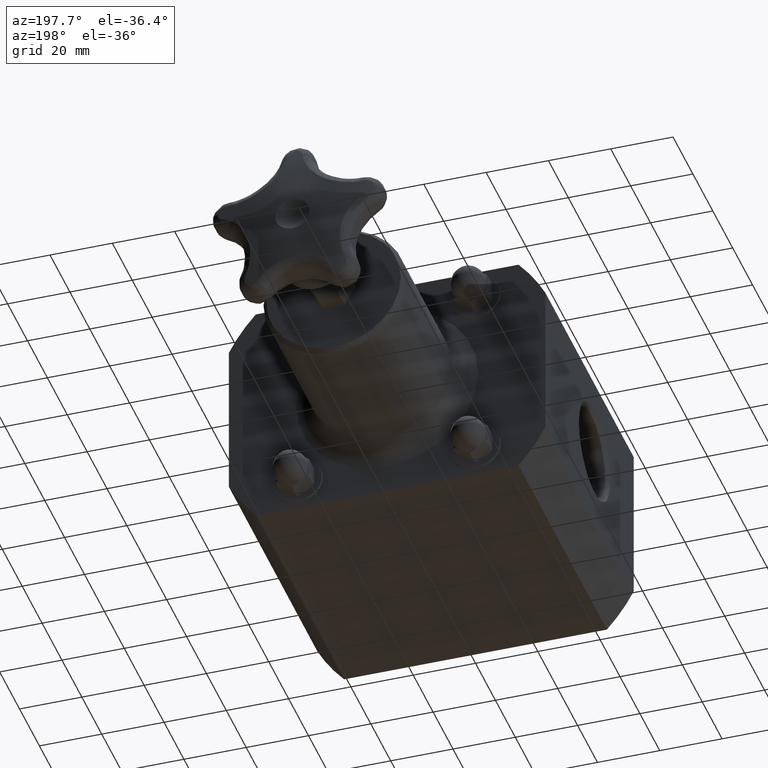
[diagram: clean part render]
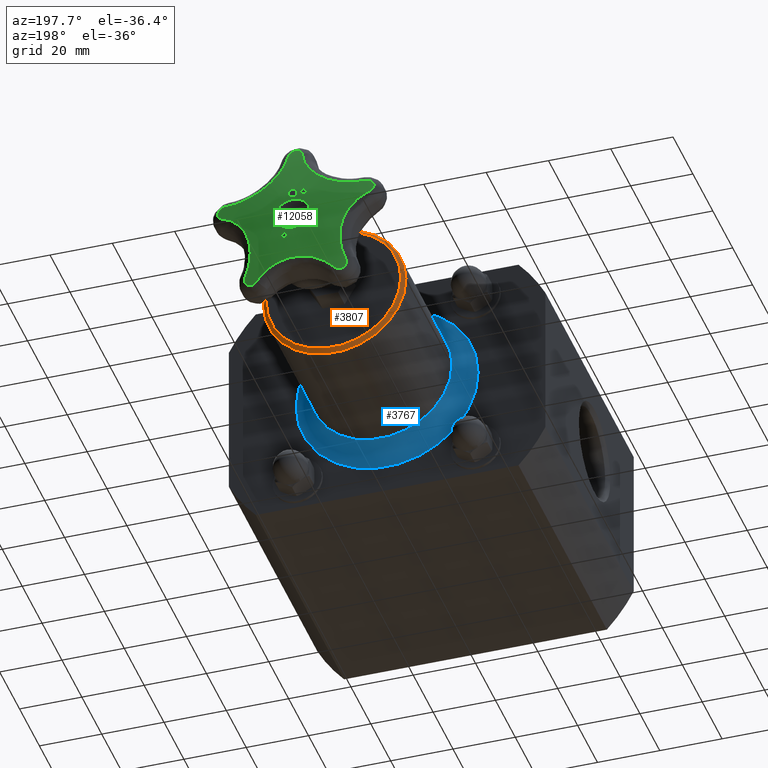
[diagram: same view with three faces highlighted in distinct colors, each labeled with its STEP entity id]
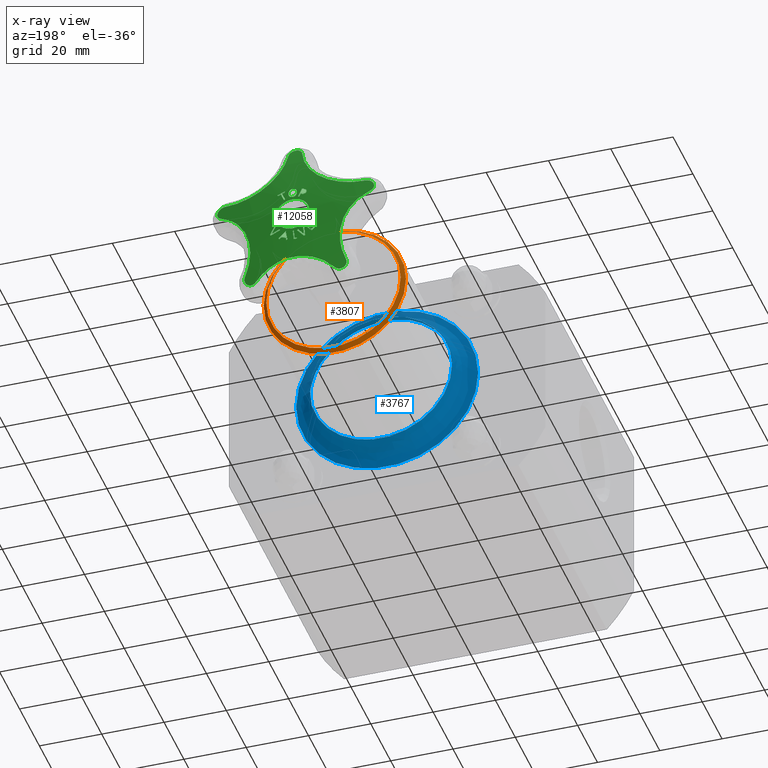
[diagram: x-ray of the same camera — body ghosted, the three highlighted faces saturated]
A machine part, auxiliary view with three faces highlighted in distinct colors.
The next image is the same camera in x-ray (body ghosted, the three faces saturated) — at least one of them is partly hidden behind the body in this view.
Their STEP definitions:

[orange] entity #3807 — the highlighted conical surface has half-angle 45 deg.
#3776=CARTESIAN_POINT('',(0.899999999999997,5.575000000000001,-1.179804E-017));
#3777=VERTEX_POINT('',#3776);
#3778=CARTESIAN_POINT('',(-2.788681E-015,5.575000000000000,4.992841E-017));
#3779=DIRECTION('',(0.0,-1.0,0.0));
#3780=DIRECTION('',(1.0,0.0,0.0));
#3781=AXIS2_PLACEMENT_3D('',#3778,#3779,#3780);
#3782=CIRCLE('',#3781,0.900000000000000);
#3783=EDGE_CURVE('',#3777,#3777,#3782,.T.);
#3788=CARTESIAN_POINT('',(-2.805312E-015,5.600000000000001,4.992841E-017));
#3789=DIRECTION('',(6.652417E-016,-1.0,3.013728E-031));
#3790=DIRECTION('',(1.0,0.0,0.0));
#3791=AXIS2_PLACEMENT_3D('',#3788,#3789,#3790);
#3792=CONICAL_SURFACE('',#3791,0.875000000000000,45.000000000000007);
#3793=ORIENTED_EDGE('',*,*,#3783,.F.);
#3794=EDGE_LOOP('',(#3793));
#3795=FACE_OUTER_BOUND('',#3794,.T.);
#3796=CARTESIAN_POINT('',(0.849999999999997,5.625000000000001,-8.368792E-018));
#3797=VERTEX_POINT('',#3796);
#3798=CARTESIAN_POINT('',(-2.821943E-015,5.625000000000001,4.992841E-017));
#3799=DIRECTION('',(0.0,-1.0,0.0));
#3800=DIRECTION('',(1.0,0.0,0.0));
#3801=AXIS2_PLACEMENT_3D('',#3798,#3799,#3800);
#3802=CIRCLE('',#3801,0.849999999999999);
#3803=EDGE_CURVE('',#3797,#3797,#3802,.T.);
#3804=ORIENTED_EDGE('',*,*,#3803,.T.);
#3805=EDGE_LOOP('',(#3804));
#3806=FACE_BOUND('',#3805,.T.);
#3807=ADVANCED_FACE('',(#3795,#3806),#3792,.T.);

[blue] entity #3767 — the highlighted face is a freeform B-spline surface patch.
#1395=CARTESIAN_POINT('',(1.149999999999999,3.500000000000001,-2.894428E-017));
#1396=VERTEX_POINT('',#1395);
#1397=CARTESIAN_POINT('',(-1.408304E-015,3.500000000000000,4.992841E-017));
#1398=DIRECTION('',(0.0,-1.0,0.0));
#1399=DIRECTION('',(1.0,0.0,0.0));
#1400=AXIS2_PLACEMENT_3D('',#1397,#1398,#1399);
#1401=CIRCLE('',#1400,1.150000000000000);
#1402=EDGE_CURVE('',#1396,#1396,#1401,.T.);
#3700=CARTESIAN_POINT('',(-1.650046E-015,3.750000000000001,1.400000000000000));
#3701=CARTESIAN_POINT('',(-1.483736E-015,3.500000000000000,1.400000000000002));
#3702=CARTESIAN_POINT('',(-1.470266E-015,3.500000000000000,1.150000000000000));
#3703=CARTESIAN_POINT('',(-1.456796E-015,3.500000000000000,0.899999999999999));
#3704=CARTESIAN_POINT('',(-1.623107E-015,3.750000000000001,0.900000000000000));
#3705=CARTESIAN_POINT('',(-1.400000000000002,3.750000000000000,1.400000000000000));
#3706=CARTESIAN_POINT('',(-1.400000000000003,3.499999999999999,1.400000000000002));
#3707=CARTESIAN_POINT('',(-1.150000000000002,3.499999999999999,1.150000000000000));
#3708=CARTESIAN_POINT('',(-0.900000000000000,3.499999999999999,0.899999999999999));
#3709=CARTESIAN_POINT('',(-0.900000000000002,3.750000000000001,0.900000000000000));
#3710=CARTESIAN_POINT('',(-1.400000000000002,3.750000000000000,-2.550321E-017));
#3711=CARTESIAN_POINT('',(-1.400000000000004,3.499999999999999,-2.550321E-017));
#3712=CARTESIAN_POINT('',(-1.150000000000002,3.499999999999999,-1.203328E-017));
#3713=CARTESIAN_POINT('',(-0.900000000000000,3.499999999999999,1.436652E-018));
#3714=CARTESIAN_POINT('',(-0.900000000000002,3.750000000000001,1.436652E-018));
#3715=CARTESIAN_POINT('',(-1.400000000000002,3.750000000000000,-1.400000000000000));
#3716=CARTESIAN_POINT('',(-1.400000000000003,3.499999999999999,-1.400000000000002));
#3717=CARTESIAN_POINT('',(-1.150000000000002,3.499999999999999,-1.150000000000000));
#3718=CARTESIAN_POINT('',(-0.900000000000000,3.499999999999999,-0.899999999999999));
#3719=CARTESIAN_POINT('',(-0.900000000000002,3.750000000000001,-0.900000000000000));
#3720=CARTESIAN_POINT('',(-1.499183E-015,3.750000000000001,-1.400000000000000));
#3721=CARTESIAN_POINT('',(-1.332873E-015,3.500000000000000,-1.400000000000002));
#3722=CARTESIAN_POINT('',(-1.346343E-015,3.500000000000000,-1.150000000000000));
#3723=CARTESIAN_POINT('',(-1.359813E-015,3.500000000000000,-0.899999999999999));
#3724=CARTESIAN_POINT('',(-1.526123E-015,3.750000000000001,-0.900000000000000));
#3725=CARTESIAN_POINT('',(1.399999999999999,3.750000000000002,-1.400000000000000));
#3726=CARTESIAN_POINT('',(1.400000000000001,3.500000000000000,-1.400000000000002));
#3727=CARTESIAN_POINT('',(1.149999999999999,3.500000000000000,-1.150000000000000));
#3728=CARTESIAN_POINT('',(0.899999999999997,3.500000000000000,-0.899999999999998));
#3729=CARTESIAN_POINT('',(0.899999999999999,3.750000000000002,-0.900000000000000));
#3730=CARTESIAN_POINT('',(1.399999999999999,3.750000000000002,1.253600E-016));
#3731=CARTESIAN_POINT('',(1.400000000000001,3.500000000000000,1.253600E-016));
#3732=CARTESIAN_POINT('',(1.149999999999999,3.500000000000000,1.118901E-016));
#3733=CARTESIAN_POINT('',(0.899999999999997,3.500000000000000,9.842017E-017));
#3734=CARTESIAN_POINT('',(0.899999999999999,3.750000000000002,9.842017E-017));
#3735=CARTESIAN_POINT('',(1.399999999999999,3.750000000000002,1.400000000000000));
#3736=CARTESIAN_POINT('',(1.400000000000001,3.500000000000000,1.400000000000002));
#3737=CARTESIAN_POINT('',(1.149999999999999,3.500000000000000,1.150000000000000));
#3738=CARTESIAN_POINT('',(0.899999999999997,3.500000000000000,0.899999999999999));
#3739=CARTESIAN_POINT('',(0.899999999999999,3.750000000000002,0.900000000000000));
#3740=CARTESIAN_POINT('',(-1.650046E-015,3.750000000000001,1.400000000000000));
#3741=CARTESIAN_POINT('',(-1.483736E-015,3.500000000000000,1.400000000000002));
#3742=CARTESIAN_POINT('',(-1.470266E-015,3.500000000000000,1.150000000000000));
#3743=CARTESIAN_POINT('',(-1.456796E-015,3.500000000000000,0.899999999999999));
#3744=CARTESIAN_POINT('',(-1.623107E-015,3.750000000000001,0.900000000000000));
#3752=(BOUNDED_SURFACE()B_SPLINE_SURFACE(2,2,((#3700,#3705,#3710,#3715,#3720,#3725,#3730,#3735,#3740),(#3701,#3706,#3711,#3716,#3721,#3726,#3731,#3736,#3741),(#3702,#3707,#3712,#3717,#3722,#3727,#3732,#3737,#3742),(#3703,#3708,#3713,#3718,#3723,#3728,#3733,#3738,#3743),(#3704,#3709,#3714,#3719,#3724,#3729,#3734,#3739,#3744)),.UNSPECIFIED.,.F.,.T.,.U.)B_SPLINE_SURFACE_WITH_KNOTS((3,2,3),(3,2,2,2,3),(-6.612826E-015,1.570796326794897,3.141592653589800),(0.0,1.570796326794897,3.141592653589793,4.712388980384690,6.283185307179586),.UNSPECIFIED.)GEOMETRIC_REPRESENTATION_ITEM()RATIONAL_B_SPLINE_SURFACE(((1.0,0.707106781186548,1.0,0.707106781186548,1.0,0.707106781186548,1.0,0.707106781186548,1.0),(0.707106781186542,0.499999999999996,0.707106781186542,0.499999999999996,0.707106781186542,0.499999999999996,0.707106781186542,0.499999999999996,0.707106781186542),(1.0,0.707106781186548,1.0,0.707106781186548,1.0,0.707106781186548,1.0,0.707106781186548,1.0),(0.707106781186544,0.499999999999998,0.707106781186544,0.499999999999998,0.707106781186544,0.499999999999998,0.707106781186544,0.499999999999998,0.707106781186544),(1.0,0.707106781186548,1.0,0.707106781186548,1.0,0.707106781186548,1.0,0.707106781186548,1.0)))REPRESENTATION_ITEM('')SURFACE());
#3753=ORIENTED_EDGE('',*,*,#1402,.F.);
#3754=EDGE_LOOP('',(#3753));
#3755=FACE_OUTER_BOUND('',#3754,.T.);
#3756=CARTESIAN_POINT('',(0.899999999999998,3.750000000000000,-1.179804E-017));
#3757=VERTEX_POINT('',#3756);
#3758=CARTESIAN_POINT('',(-1.574615E-015,3.750000000000000,4.992841E-017));
#3759=DIRECTION('',(0.0,-1.0,0.0));
#3760=DIRECTION('',(1.0,0.0,0.0));
#3761=AXIS2_PLACEMENT_3D('',#3758,#3759,#3760);
#3762=CIRCLE('',#3761,0.900000000000000);
#3763=EDGE_CURVE('',#3757,#3757,#3762,.T.);
#3764=ORIENTED_EDGE('',*,*,#3763,.T.);
#3765=EDGE_LOOP('',(#3764));
#3766=FACE_BOUND('',#3765,.T.);
#3767=ADVANCED_FACE('',(#3755,#3766),#3752,.T.);

[green] entity #12058 — the highlighted spherical surface has radius 101.6 mm.
#8869=CARTESIAN_POINT('',(0.085862900185205,7.240578033837450,-0.334336098257463));
#8870=VERTEX_POINT('',#8869);
#8877=CARTESIAN_POINT('',(0.080862571524469,7.238070388788941,-0.364135061299997));
#8878=VERTEX_POINT('',#8877);
#8879=CARTESIAN_POINT('',(0.138077283113866,3.255500000000000,-0.023169658459773));
#8880=DIRECTION('',(0.986211736099962,8.119753E-016,-0.165488403154721));
#8881=DIRECTION('',(0.165488403154721,1.362512E-016,0.986211736099962));
#8882=AXIS2_PLACEMENT_3D('',#8879,#8880,#8881);
#8883=CIRCLE('',#8882,3.997548977913186);
#8884=EDGE_CURVE('',#8878,#8870,#8883,.T.);
#8902=CARTESIAN_POINT('',(0.066931145986270,7.238560100352849,-0.361597094393902));
#8903=VERTEX_POINT('',#8902);
#8904=CARTESIAN_POINT('',(-0.061608234058830,3.255500000000000,-0.338180345563004));
#8905=DIRECTION('',(-0.179225881333302,0.0,-0.983807950496590));
#8906=DIRECTION('',(0.0,-1.0,0.0));
#8907=AXIS2_PLACEMENT_3D('',#8904,#8905,#8906);
#8908=CIRCLE('',#8907,3.985202438944732);
#8909=EDGE_CURVE('',#8903,#8878,#8908,.T.);
#8927=CARTESIAN_POINT('',(0.086359266902225,7.247345606544358,-0.240230577846814));
#8928=VERTEX_POINT('',#8927);
#8929=CARTESIAN_POINT('',(0.121696449326064,3.255500000000000,-0.019480935927100));
#8930=DIRECTION('',(-0.987428598717144,-8.129772E-016,0.158065690254078));
#8931=DIRECTION('',(-0.158065690254078,-1.301398E-016,-0.987428598717144));
#8932=AXIS2_PLACEMENT_3D('',#8929,#8930,#8931);
#8933=CIRCLE('',#8932,3.998100857576862);
#8934=EDGE_CURVE('',#8928,#8903,#8933,.T.);
#8952=CARTESIAN_POINT('',(0.178491128782154,7.238560100243761,-0.321516958794137));
#8953=VERTEX_POINT('',#8952);
#8954=CARTESIAN_POINT('',(-0.081379549747354,3.255500000000000,-0.092237461550080));
#8955=DIRECTION('',(0.661592173204071,0.0,0.749863851879202));
#8956=DIRECTION('',(0.0,1.0,0.0));
#8957=AXIS2_PLACEMENT_3D('',#8954,#8955,#8956);
#8958=CIRCLE('',#8957,3.998108255108873);
#8959=EDGE_CURVE('',#8953,#8928,#8958,.T.);
#8995=CARTESIAN_POINT('',(0.169360113250162,7.238070388702393,-0.332340564889026));
#8996=VERTEX_POINT('',#8995);
#8997=CARTESIAN_POINT('',(0.262739148876331,3.255500000000000,-0.221652121134104));
#8998=DIRECTION('',(0.764340282334966,0.0,-0.644813099122609));
#8999=DIRECTION('',(0.0,-1.0,0.0));
#9000=AXIS2_PLACEMENT_3D('',#8997,#8998,#8999);
#9001=CIRCLE('',#9000,3.985202438627741);
#9002=EDGE_CURVE('',#8996,#8953,#9001,.T.);
#9020=CARTESIAN_POINT('',(0.146539084429398,7.240578033778149,-0.312536976105991));
#9021=VERTEX_POINT('',#9020);
#9022=CARTESIAN_POINT('',(-0.091762441742964,3.255500000000000,-0.105744133077216));
#9023=DIRECTION('',(-0.655409775395539,0.0,-0.755273477831686));
#9024=DIRECTION('',(0.0,-1.0,0.0));
#9025=AXIS2_PLACEMENT_3D('',#9022,#9023,#9024);
#9026=CIRCLE('',#9025,3.997548978137118);
#9027=EDGE_CURVE('',#9021,#8996,#9026,.T.);
#9045=CARTESIAN_POINT('',(0.116200988857741,3.255500000000000,-0.323436538421051));
#9046=DIRECTION('',(0.338111065893150,0.0,-0.941106214579735));
#9047=DIRECTION('',(0.0,-1.0,0.0));
#9048=AXIS2_PLACEMENT_3D('',#9045,#9046,#9047);
#9049=CIRCLE('',#9048,3.985208418113498);
#9050=EDGE_CURVE('',#8870,#9021,#9049,.T.);
#9080=CARTESIAN_POINT('',(0.037834369669127,7.246204436490726,0.269901206082852));
#9081=VERTEX_POINT('',#9080);
#9088=CARTESIAN_POINT('',(-0.000813251585515,7.247463335806677,0.253432563411025));
#9089=VERTEX_POINT('',#9088);
#9090=CARTESIAN_POINT('',(-0.000813251585516,7.247463335806677,0.253432563411025));
#9091=CARTESIAN_POINT('',(0.004822604549688,7.247463267161416,0.253451729844247));
#9092=CARTESIAN_POINT('',(0.010434056143412,7.247408968571550,0.254137147028971));
#9093=CARTESIAN_POINT('',(0.019829419967583,7.247191776701514,0.256945437338924));
#9094=CARTESIAN_POINT('',(0.023603879105446,7.247063271092423,0.258616838560288));
#9095=CARTESIAN_POINT('',(0.031162797321001,7.246707503911847,0.263275608997046));
#9096=CARTESIAN_POINT('',(0.034718544485050,7.246475224151670,0.266334166676061));
#9097=CARTESIAN_POINT('',(0.037834369669128,7.246204436490726,0.269901206082852));
#9098=B_SPLINE_CURVE_WITH_KNOTS('',3,(#9090,#9091,#9092,#9093,#9094,#9095,#9096,#9097),.UNSPECIFIED.,.F.,.U.,(4,2,2,4),(0.0,0.042945472093289,0.074729953679080,0.111130521126663),.UNSPECIFIED.);
#9099=EDGE_CURVE('',#9089,#9081,#9098,.T.);
#9132=CARTESIAN_POINT('',(0.051972176469603,7.242648590963244,0.316140801626154));
#9133=VERTEX_POINT('',#9132);
#9140=CARTESIAN_POINT('',(0.037834369669128,7.246204436490726,0.269901206082852));
#9141=CARTESIAN_POINT('',(0.041442739555285,7.245886429832900,0.274097371770597));
#9142=CARTESIAN_POINT('',(0.044216393332112,7.245526143654533,0.278867364485765));
#9143=CARTESIAN_POINT('',(0.051175872144368,7.244247534047898,0.295695352673442));
#9144=CARTESIAN_POINT('',(0.052000310715347,7.243304176149835,0.307867975918427));
#9145=CARTESIAN_POINT('',(0.051972176469603,7.242648590963245,0.316140801626154));
#9146=B_SPLINE_CURVE_WITH_KNOTS('',3,(#9140,#9141,#9142,#9143,#9144,#9145),.UNSPECIFIED.,.F.,.U.,(4,2,4),(0.0,0.042240697270331,0.139117363804144),.UNSPECIFIED.);
#9147=EDGE_CURVE('',#9081,#9133,#9146,.T.);
#9173=CARTESIAN_POINT('',(0.037422621985942,7.238875481075144,0.362380082417698));
#9174=VERTEX_POINT('',#9173);
#9181=CARTESIAN_POINT('',(0.051972176469603,7.242648590963245,0.316140801626154));
#9182=CARTESIAN_POINT('',(0.051955724861652,7.242265235014527,0.320978368143261));
#9183=CARTESIAN_POINT('',(0.051649887753160,7.241873160763518,0.325860197870603));
#9184=CARTESIAN_POINT('',(0.050134657362978,7.241046460787356,0.336059631335726));
#9185=CARTESIAN_POINT('',(0.048942330808369,7.240679768741240,0.340537076610656));
#9186=CARTESIAN_POINT('',(0.045132529339026,7.239814489793274,0.351068251626343));
#9187=CARTESIAN_POINT('',(0.041865078415879,7.239314249290124,0.357098260899482));
#9188=CARTESIAN_POINT('',(0.037422621985942,7.238875481075145,0.362380082417698));
#9189=B_SPLINE_CURVE_WITH_KNOTS('',3,(#9181,#9182,#9183,#9184,#9185,#9186,#9187,#9188),.UNSPECIFIED.,.F.,.U.,(4,2,2,4),(0.0,0.036978033263811,0.078812994269673,0.145814753845857),.UNSPECIFIED.);
#9190=EDGE_CURVE('',#9133,#9174,#9189,.T.);
#9218=CARTESIAN_POINT('',(-0.001238542349028,7.237552846207735,0.378488567887761));
#9219=VERTEX_POINT('',#9218);
#9226=CARTESIAN_POINT('',(0.037422621985942,7.238875481075144,0.362380082417698));
#9227=CARTESIAN_POINT('',(0.034954443929444,7.238644692501275,0.365171856276013));
#9228=CARTESIAN_POINT('',(0.032197988751055,7.238440415363388,0.367645041378230));
#9229=CARTESIAN_POINT('',(0.025433171661511,7.238054380883789,0.372335971569167));
#9230=CARTESIAN_POINT('',(0.021382576080445,7.237892027163674,0.374321631798851));
#9231=CARTESIAN_POINT('',(0.014161922593866,7.237697132621298,0.376716303028089));
#9232=CARTESIAN_POINT('',(0.011126297743760,7.237640822220747,0.377412789087581));
#9233=CARTESIAN_POINT('',(0.004967186895544,7.237568654773591,0.378304358121796));
#9234=CARTESIAN_POINT('',(0.001864839243263,7.237552808314177,0.378499121875411));
#9235=CARTESIAN_POINT('',(-0.001238542349028,7.237552846207734,0.378488567887761));
#9236=B_SPLINE_CURVE_WITH_KNOTS('',3,(#9226,#9227,#9228,#9229,#9230,#9231,#9232,#9233,#9234,#9235),.UNSPECIFIED.,.F.,.U.,(4,2,2,2,4),(0.0,0.028449418287417,0.062797366334246,0.086669104210055,0.110412733579470),.UNSPECIFIED.);
#9237=EDGE_CURVE('',#9174,#9219,#9236,.T.);
#9423=CARTESIAN_POINT('',(-0.039886494311885,7.238875481072100,0.362117169387378));
#9424=VERTEX_POINT('',#9423);
#9431=CARTESIAN_POINT('',(-0.001238542349028,7.237552846207736,0.378488567887761));
#9432=CARTESIAN_POINT('',(-0.006745334190300,7.237552913447913,0.378469840376703));
#9433=CARTESIAN_POINT('',(-0.012222719771295,7.237603190919958,0.377803010782852));
#9434=CARTESIAN_POINT('',(-0.022169110236769,7.237836259202795,0.374873454632416));
#9435=CARTESIAN_POINT('',(-0.025880772573744,7.237983982792516,0.373045650941542));
#9436=CARTESIAN_POINT('',(-0.032976239086440,7.238326456239562,0.368822005397033));
#9437=CARTESIAN_POINT('',(-0.036677483482779,7.238576120274294,0.365763676003977));
#9438=CARTESIAN_POINT('',(-0.039886494311885,7.238875481072100,0.362117169387378));
#9439=B_SPLINE_CURVE_WITH_KNOTS('',3,(#9431,#9432,#9433,#9434,#9435,#9436,#9437,#9438),.UNSPECIFIED.,.F.,.U.,(4,2,2,4),(0.0,0.041961996486355,0.079020325656231,0.132098515306939),.UNSPECIFIED.);
#9440=EDGE_CURVE('',#9219,#9424,#9439,.T.);
#9466=CARTESIAN_POINT('',(-0.054121214575590,7.242648590959069,0.315779998964418));
#9467=VERTEX_POINT('',#9466);
#9474=CARTESIAN_POINT('',(-0.039886494311885,7.238875481072101,0.362117169387378));
#9475=CARTESIAN_POINT('',(-0.043384531614645,7.239215540252461,0.357991135129825));
#9476=CARTESIAN_POINT('',(-0.046110522559893,7.239601304155912,0.353327026506887));
#9477=CARTESIAN_POINT('',(-0.049655140330855,7.240287322165350,0.344989572698872));
#9478=CARTESIAN_POINT('',(-0.051408401706374,7.240680648419752,0.340203251638014));
#9479=CARTESIAN_POINT('',(-0.053714336300570,7.241694761028935,0.327721858865082));
#9480=CARTESIAN_POINT('',(-0.054141415064123,7.242177878462817,0.321719917253610));
#9481=CARTESIAN_POINT('',(-0.054121214575590,7.242648590959071,0.315779998964418));
#9482=B_SPLINE_CURVE_WITH_KNOTS('',3,(#9474,#9475,#9476,#9477,#9478,#9479,#9480,#9481),.UNSPECIFIED.,.F.,.U.,(4,2,2,4),(0.0,0.041300163745689,0.069239721804254,0.093823977580811),.UNSPECIFIED.);
#9483=EDGE_CURVE('',#9424,#9467,#9482,.T.);
#9509=CARTESIAN_POINT('',(-0.039571990800143,7.246205379604828,0.269637962344317));
#9510=VERTEX_POINT('',#9509);
#9517=CARTESIAN_POINT('',(-0.054121214575590,7.242648590959070,0.315779998964418));
#9518=CARTESIAN_POINT('',(-0.054104973183968,7.243027048439478,0.311004246190808));
#9519=CARTESIAN_POINT('',(-0.053791585087134,7.243402200783876,0.306211457940531));
#9520=CARTESIAN_POINT('',(-0.052375519715100,7.244143410979319,0.296655576028873));
#9521=CARTESIAN_POINT('',(-0.051258684496634,7.244507467278866,0.291916990166382));
#9522=CARTESIAN_POINT('',(-0.047377403862627,7.245352193214817,0.280860112488070));
#9523=CARTESIAN_POINT('',(-0.044132654634135,7.245811607413359,0.274796561836271));
#9524=CARTESIAN_POINT('',(-0.039571990800143,7.246205379604829,0.269637962344317));
#9525=B_SPLINE_CURVE_WITH_KNOTS('',3,(#9517,#9518,#9519,#9520,#9521,#9522,#9523,#9524),.UNSPECIFIED.,.F.,.U.,(4,2,2,4),(0.0,0.036505533163791,0.073822024429602,0.126837533468264),.UNSPECIFIED.);
#9526=EDGE_CURVE('',#9467,#9510,#9525,.T.);
#9553=CARTESIAN_POINT('',(-0.039571990800143,7.246205379604830,0.269637962344317));
#9554=CARTESIAN_POINT('',(-0.036994618978140,7.246426649193221,0.266741374653484));
#9555=CARTESIAN_POINT('',(-0.034125944551205,7.246624226597591,0.264155087526020));
#9556=CARTESIAN_POINT('',(-0.028127958870899,7.246941902899273,0.260022999604724));
#9557=CARTESIAN_POINT('',(-0.024119800176992,7.247119835051820,0.257727462092390));
#9558=CARTESIAN_POINT('',(-0.015614631027450,7.247330482346445,0.255058899401250));
#9559=CARTESIAN_POINT('',(-0.012615830697539,7.247382732516449,0.254406267976287));
#9560=CARTESIAN_POINT('',(-0.006666959610794,7.247448427235688,0.253597873925736));
#9561=CARTESIAN_POINT('',(-0.003741704705229,7.247463371475512,0.253422604320576));
#9562=CARTESIAN_POINT('',(-0.000813251586151,7.247463335806678,0.253432563411023));
#9563=B_SPLINE_CURVE_WITH_KNOTS('',3,(#9553,#9554,#9555,#9556,#9557,#9558,#9559,#9560,#9561,#9562),.UNSPECIFIED.,.F.,.U.,(4,2,2,2,4),(0.0,0.029592715149351,0.055552496815722,0.069221283901438,0.082236559754027),.UNSPECIFIED.);
#9564=EDGE_CURVE('',#9510,#9089,#9563,.T.);
#9838=CARTESIAN_POINT('',(-0.247118300170070,7.242930202010448,-0.198325313099392));
#9839=VERTEX_POINT('',#9838);
#9846=CARTESIAN_POINT('',(-0.207827658530658,7.243059962457521,-0.237008882018032));
#9847=VERTEX_POINT('',#9846);
#9848=CARTESIAN_POINT('',(-0.220785948703937,3.255499999999999,-0.224250808083116));
#9849=DIRECTION('',(0.701580297701931,0.0,0.712590405405847));
#9850=DIRECTION('',(0.0,1.0,0.0));
#9851=AXIS2_PLACEMENT_3D('',#9848,#9849,#9850);
#9852=CIRCLE('',#9851,3.987601426914302);
#9853=EDGE_CURVE('',#9847,#9839,#9852,.T.);
#9871=CARTESIAN_POINT('',(-0.176580613442939,7.246324840990899,-0.205271467783727));
#9872=VERTEX_POINT('',#9871);
#9873=CARTESIAN_POINT('',(0.012958290173280,3.255500000000000,-0.012758073934915));
#9874=DIRECTION('',(-0.712590405405847,0.0,0.701580297701931));
#9875=DIRECTION('',(0.0,1.0,0.0));
#9876=AXIS2_PLACEMENT_3D('',#9873,#9874,#9875);
#9877=CIRCLE('',#9876,3.999958664069575);
#9878=EDGE_CURVE('',#9872,#9847,#9877,.T.);
#9896=CARTESIAN_POINT('',(-0.218712377317299,7.246156275729468,-0.163790674304833));
#9897=VERTEX_POINT('',#9896);
#9898=CARTESIAN_POINT('',(-0.189538903616217,3.255500000000000,-0.192513393848812));
#9899=DIRECTION('',(-0.701580297701931,0.0,-0.712590405405848));
#9900=DIRECTION('',(0.0,-1.0,0.0));
#9901=AXIS2_PLACEMENT_3D('',#9898,#9899,#9900);
#9902=CIRCLE('',#9901,3.990866271526118);
#9903=EDGE_CURVE('',#9897,#9872,#9902,.T.);
#9921=CARTESIAN_POINT('',(-0.208751528883223,7.247092069880929,-0.153673507321845));
#9922=VERTEX_POINT('',#9921);
#9923=CARTESIAN_POINT('',(-0.029173473701081,3.255500000000000,0.028722719543979));
#9924=DIRECTION('',(-0.712590405405848,0.0,0.701580297701931));
#9925=DIRECTION('',(0.0,1.0,0.0));
#9926=AXIS2_PLACEMENT_3D('',#9923,#9924,#9925);
#9927=CIRCLE('',#9926,3.999790483739644);
#9928=EDGE_CURVE('',#9922,#9897,#9927,.T.);
#9946=CARTESIAN_POINT('',(-0.155255276069068,7.247156082813489,-0.206343199041757));
#9947=VERTEX_POINT('',#9946);
#9948=CARTESIAN_POINT('',(-0.179578055182141,3.255500000000000,-0.182396226865824));
#9949=DIRECTION('',(0.701580297701931,0.0,0.712590405405847));
#9950=DIRECTION('',(0.0,1.0,0.0));
#9951=AXIS2_PLACEMENT_3D('',#9948,#9949,#9950);
#9952=CIRCLE('',#9951,3.991802016448476);
#9953=EDGE_CURVE('',#9947,#9922,#9952,.T.);
#9971=CARTESIAN_POINT('',(-0.239444912833796,7.237646073155508,-0.291854048747284));
#9972=VERTEX_POINT('',#9971);
#9973=CARTESIAN_POINT('',(0.024322779113074,3.255500000000000,-0.023946972175933));
#9974=DIRECTION('',(0.712590405405848,0.0,-0.701580297701931));
#9975=DIRECTION('',(0.0,-1.0,0.0));
#9976=AXIS2_PLACEMENT_3D('',#9973,#9974,#9975);
#9977=CIRCLE('',#9976,3.999854365466301);
#9978=EDGE_CURVE('',#9972,#9947,#9977,.T.);
#9996=CARTESIAN_POINT('',(-0.292941165647951,7.237581907347239,-0.239184357027373));
#9997=VERTEX_POINT('',#9996);
#9998=CARTESIAN_POINT('',(-0.263767691946869,3.255499999999999,-0.267907076571351));
#9999=DIRECTION('',(-0.701580297701931,0.0,-0.712590405405847));
#10000=DIRECTION('',(0.0,-1.0,0.0));
#10001=AXIS2_PLACEMENT_3D('',#9998,#9999,#10000);
#10002=CIRCLE('',#10001,3.982292355290859);
#10003=EDGE_CURVE('',#9997,#9972,#10002,.T.);
#10021=CARTESIAN_POINT('',(-0.282980317213875,7.238896837187415,-0.229067190044385));
#10022=VERTEX_POINT('',#10021);
#10023=CARTESIAN_POINT('',(-0.029173473701081,3.255500000000000,0.028722719543979));
#10024=DIRECTION('',(-0.712590405405848,0.0,0.701580297701931));
#10025=DIRECTION('',(0.0,1.0,0.0));
#10026=AXIS2_PLACEMENT_3D('',#10023,#10024,#10025);
#10027=CIRCLE('',#10026,3.999790483739644);
#10028=EDGE_CURVE('',#10022,#9997,#10027,.T.);
#10046=CARTESIAN_POINT('',(-0.240848553339514,7.239065709633237,-0.270547983523279));
#10047=VERTEX_POINT('',#10046);
#10048=CARTESIAN_POINT('',(-0.253806843512793,3.255499999999999,-0.257789909588364));
#10049=DIRECTION('',(0.701580297701931,0.0,0.712590405405847));
#10050=DIRECTION('',(0.0,1.0,0.0));
#10051=AXIS2_PLACEMENT_3D('',#10048,#10049,#10050);
#10052=CIRCLE('',#10051,3.983607215665281);
#10053=EDGE_CURVE('',#10047,#10022,#10052,.T.);
#10071=CARTESIAN_POINT('',(-0.217788506964735,7.241914037971874,-0.247126049001019));
#10072=VERTEX_POINT('',#10071);
#10073=CARTESIAN_POINT('',(0.012958290173280,3.255500000000000,-0.012758073934915));
#10074=DIRECTION('',(-0.712590405405848,0.0,0.701580297701930));
#10075=DIRECTION('',(0.0,1.0,0.0));
#10076=AXIS2_PLACEMENT_3D('',#10073,#10074,#10075);
#10077=CIRCLE('',#10076,3.999958664069575);
#10078=EDGE_CURVE('',#10072,#10047,#10077,.T.);
#10096=CARTESIAN_POINT('',(-0.257079148604146,7.241784240222977,-0.208442480082380));
#10097=VERTEX_POINT('',#10096);
#10098=CARTESIAN_POINT('',(-0.230746797138013,3.255499999999999,-0.234367975066104));
#10099=DIRECTION('',(-0.701580297701931,0.0,-0.712590405405848));
#10100=DIRECTION('',(0.0,-1.0,0.0));
#10101=AXIS2_PLACEMENT_3D('',#10098,#10099,#10100);
#10102=CIRCLE('',#10101,3.986455514347798);
#10103=EDGE_CURVE('',#10097,#10072,#10102,.T.);
#10121=CARTESIAN_POINT('',(-0.026332351466132,3.255500000000000,0.025925494983724));
#10122=DIRECTION('',(-0.712590405405848,0.0,0.701580297701931));
#10123=DIRECTION('',(0.0,1.0,0.0));
#10124=AXIS2_PLACEMENT_3D('',#10121,#10122,#10123);
#10125=CIRCLE('',#10124,3.999829305854953);
#10126=EDGE_CURVE('',#9839,#10097,#10125,.T.);
#10148=CARTESIAN_POINT('',(0.104679989358759,7.237501420719624,0.364289425065761));
#10149=VERTEX_POINT('',#10148);
#10156=CARTESIAN_POINT('',(0.193260657033250,7.237499064924952,0.326088585172621));
#10157=VERTEX_POINT('',#10156);
#10158=CARTESIAN_POINT('',(0.148881029224557,3.255500000000000,0.345227513574776));
#10159=DIRECTION('',(0.395999965100261,0.0,0.918250525532435));
#10160=DIRECTION('',(0.0,1.0,0.0));
#10161=AXIS2_PLACEMENT_3D('',#10158,#10159,#10160);
#10162=CIRCLE('',#10161,3.982292355290859);
#10163=EDGE_CURVE('',#10157,#10149,#10162,.T.);
#10188=CARTESIAN_POINT('',(0.099057688326099,7.238816377129186,0.351252350992701));
#10189=VERTEX_POINT('',#10188);
#10196=CARTESIAN_POINT('',(-0.044201039865796,3.255500000000000,0.019061911490985));
#10197=DIRECTION('',(-0.918250525532435,-7.560210E-016,0.395999965100260));
#10198=DIRECTION('',(-0.395999965100260,-3.260377E-016,-0.918250525532435));
#10199=AXIS2_PLACEMENT_3D('',#10196,#10197,#10198);
#10200=CIRCLE('',#10199,3.999710353463748);
#10201=EDGE_CURVE('',#10149,#10189,#10200,.T.);
#10221=CARTESIAN_POINT('',(0.136025829875735,7.239099428197435,0.335309661763104));
#10222=VERTEX_POINT('',#10221);
#10229=CARTESIAN_POINT('',(0.143258728191897,3.255500000000000,0.332190439501716));
#10230=DIRECTION('',(-0.395999965100261,0.0,-0.918250525532434));
#10231=DIRECTION('',(0.0,-1.0,0.0));
#10232=AXIS2_PLACEMENT_3D('',#10229,#10230,#10231);
#10233=CIRCLE('',#10232,3.983607215665281);
#10234=EDGE_CURVE('',#10189,#10222,#10233,.T.);
#10254=CARTESIAN_POINT('',(0.094128134509066,7.247294244967612,0.238156671410437));
#10255=VERTEX_POINT('',#10254);
#10262=CARTESIAN_POINT('',(-0.007232898316160,3.255500000000000,0.003119222261389));
#10263=DIRECTION('',(-0.918250525532435,-7.560210E-016,0.395999965100261));
#10264=DIRECTION('',(-0.395999965100261,-3.260377E-016,-0.918250525532435));
#10265=AXIS2_PLACEMENT_3D('',#10262,#10263,#10264);
#10266=CIRCLE('',#10265,3.999992244446786);
#10267=EDGE_CURVE('',#10222,#10255,#10266,.T.);
#10287=CARTESIAN_POINT('',(0.108772519084284,7.247293856457106,0.231841209976490));
#10288=VERTEX_POINT('',#10287);
#10295=CARTESIAN_POINT('',(0.101361032825227,3.255500000000000,0.235037449149048));
#10296=DIRECTION('',(-0.395999965100260,0.0,-0.918250525532435));
#10297=DIRECTION('',(0.0,-1.0,0.0));
#10298=AXIS2_PLACEMENT_3D('',#10295,#10296,#10297);
#10299=CIRCLE('',#10298,3.991802016448476);
#10300=EDGE_CURVE('',#10255,#10288,#10299,.T.);
#10320=CARTESIAN_POINT('',(0.150670214450954,7.239099038887709,0.328994200329157));
#10321=VERTEX_POINT('',#10320);
#10328=CARTESIAN_POINT('',(0.007411486259058,3.255500000000000,-0.003196239172558));
#10329=DIRECTION('',(0.918250525532434,7.560210E-016,-0.395999965100261));
#10330=DIRECTION('',(0.395999965100261,3.260377E-016,0.918250525532434));
#10331=AXIS2_PLACEMENT_3D('',#10328,#10329,#10330);
#10332=CIRCLE('',#10331,3.999991856732535);
#10333=EDGE_CURVE('',#10288,#10321,#10332,.T.);
#10353=CARTESIAN_POINT('',(0.187638356000590,7.238814022112201,0.313051511099561));
#10354=VERTEX_POINT('',#10353);
#10361=CARTESIAN_POINT('',(0.143258728191897,3.255500000000000,0.332190439501716));
#10362=DIRECTION('',(-0.395999965100261,0.0,-0.918250525532435));
#10363=DIRECTION('',(0.0,-1.0,0.0));
#10364=AXIS2_PLACEMENT_3D('',#10361,#10362,#10363);
#10365=CIRCLE('',#10364,3.983607215665281);
#10366=EDGE_CURVE('',#10321,#10354,#10365,.T.);
#10385=CARTESIAN_POINT('',(0.044379627808695,3.255500000000000,-0.019138928402155));
#10386=DIRECTION('',(0.918250525532435,7.560210E-016,-0.395999965100259));
#10387=DIRECTION('',(0.395999965100259,3.260377E-016,0.918250525532435));
#10388=AXIS2_PLACEMENT_3D('',#10385,#10386,#10387);
#10389=CIRCLE('',#10388,3.999708008099489);
#10390=EDGE_CURVE('',#10354,#10157,#10389,.T.);
#10489=CARTESIAN_POINT('',(-0.132776476717601,7.247152316888536,-0.221545002897484));
#10490=VERTEX_POINT('',#10489);
#10497=CARTESIAN_POINT('',(-0.141106922486275,7.239658741024817,-0.326447488490870));
#10498=VERTEX_POINT('',#10497);
#10499=CARTESIAN_POINT('',(-0.114461481346887,3.255500000000000,0.009089538322841));
#10500=DIRECTION('',(0.996861755361221,8.207438E-016,-0.079162116559279));
#10501=DIRECTION('',(0.079162116559279,6.517635E-017,0.996861755361221));
#10502=AXIS2_PLACEMENT_3D('',#10499,#10500,#10501);
#10503=CIRCLE('',#10502,3.998351654067081);
#10504=EDGE_CURVE('',#10498,#10490,#10503,.T.);
#10522=CARTESIAN_POINT('',(-0.071391562909484,7.247171847508763,-0.247909472492114));
#10523=VERTEX_POINT('',#10522);
#10524=CARTESIAN_POINT('',(0.083150511259559,3.255500000000000,-0.073809704991097));
#10525=DIRECTION('',(-0.747864056465855,0.0,0.663851905959784));
#10526=DIRECTION('',(0.0,1.0,0.0));
#10527=AXIS2_PLACEMENT_3D('',#10524,#10525,#10526);
#10528=CIRCLE('',#10527,3.998454466406539);
#10529=EDGE_CURVE('',#10523,#10498,#10528,.T.);
#10547=CARTESIAN_POINT('',(-0.055754940032599,7.246998131883169,-0.254625312636306));
#10548=VERTEX_POINT('',#10547);
#10549=CARTESIAN_POINT('',(-0.101011795140336,3.255500000000000,-0.235187752062933));
#10550=DIRECTION('',(0.394635554071923,0.0,0.918837732933485));
#10551=DIRECTION('',(0.0,1.0,0.0));
#10552=AXIS2_PLACEMENT_3D('',#10549,#10550,#10551);
#10553=CIRCLE('',#10552,3.991802016448476);
#10554=EDGE_CURVE('',#10548,#10523,#10553,.T.);
#10572=CARTESIAN_POINT('',(-0.140907158403205,7.237784076964298,-0.348652696916783));
#10573=VERTEX_POINT('',#10572);
#10574=CARTESIAN_POINT('',(0.096057099062327,3.255500000000000,-0.086990350077203));
#10575=DIRECTION('',(0.741222642945153,0.0,-0.671259259590065));
#10576=DIRECTION('',(0.0,-1.0,0.0));
#10577=AXIS2_PLACEMENT_3D('',#10574,#10575,#10576);
#10578=CIRCLE('',#10577,3.997900162924680);
#10579=EDGE_CURVE('',#10573,#10548,#10578,.T.);
#10597=CARTESIAN_POINT('',(-0.156722485541541,7.237781975401069,-0.341860104313800));
#10598=VERTEX_POINT('',#10597);
#10599=CARTESIAN_POINT('',(-0.148368062214241,3.255500000000000,-0.345448281377657));
#10600=DIRECTION('',(-0.394635554071924,0.0,-0.918837732933484));
#10601=DIRECTION('',(0.0,-1.0,0.0));
#10602=AXIS2_PLACEMENT_3D('',#10599,#10600,#10601);
#10603=CIRCLE('',#10602,3.982292355290859);
#10604=EDGE_CURVE('',#10598,#10573,#10603,.T.);
#10622=CARTESIAN_POINT('',(-0.147698282548686,7.246978628851239,-0.215136172588455));
#10623=VERTEX_POINT('',#10622);
#10624=CARTESIAN_POINT('',(-0.131710197155652,3.255500000000000,0.009379282501568));
#10625=DIRECTION('',(-0.997474063033574,-8.212479E-016,0.071031637847470));
#10626=DIRECTION('',(-0.071031637847470,-5.848231E-017,-0.997474063033574));
#10627=AXIS2_PLACEMENT_3D('',#10624,#10625,#10626);
#10628=CIRCLE('',#10627,3.997819962557716);
#10629=EDGE_CURVE('',#10623,#10598,#10628,.T.);
#10647=CARTESIAN_POINT('',(-0.101011795140335,3.255500000000000,-0.235187752062933));
#10648=DIRECTION('',(0.394635554071923,0.0,0.918837732933485));
#10649=DIRECTION('',(0.0,1.0,0.0));
#10650=AXIS2_PLACEMENT_3D('',#10647,#10648,#10649);
#10651=CIRCLE('',#10650,3.991802016448476);
#10652=EDGE_CURVE('',#10490,#10623,#10651,.T.);
#10674=CARTESIAN_POINT('',(-0.069865805707582,7.247162659387477,0.248491414025747));
#10675=VERTEX_POINT('',#10674);
#10682=CARTESIAN_POINT('',(-0.084532147718003,7.247264063873194,0.242227113207305));
#10683=VERTEX_POINT('',#10682);
#10684=CARTESIAN_POINT('',(-0.100539922146021,3.255500000000000,0.235389858602194));
#10685=DIRECTION('',(0.392792028171763,0.0,-0.919627328108899));
#10686=DIRECTION('',(0.0,-1.0,0.0));
#10687=AXIS2_PLACEMENT_3D('',#10684,#10685,#10686);
#10688=CIRCLE('',#10687,3.991802016448476);
#10689=EDGE_CURVE('',#10683,#10675,#10688,.T.);
#10714=CARTESIAN_POINT('',(-0.117000849670734,7.237652665435395,0.358846694762692));
#10715=VERTEX_POINT('',#10714);
#10722=CARTESIAN_POINT('',(0.030674116438440,3.255500000000000,0.013101555423553));
#10723=DIRECTION('',(0.919627328108900,7.571545E-016,0.392792028171762));
#10724=DIRECTION('',(-0.392792028171762,-3.233965E-016,0.919627328108900));
#10725=AXIS2_PLACEMENT_3D('',#10722,#10723,#10724);
#10726=CIRCLE('',#10725,3.999860928560668);
#10727=EDGE_CURVE('',#10675,#10715,#10726,.T.);
#10747=CARTESIAN_POINT('',(-0.144723813227017,7.237791062296547,0.347005638337589));
#10748=VERTEX_POINT('',#10747);
#10755=CARTESIAN_POINT('',(-0.147674966109173,3.255500000000000,0.345745139339140));
#10756=DIRECTION('',(-0.392792028171761,0.0,0.919627328108900));
#10757=DIRECTION('',(0.0,1.0,0.0));
#10758=AXIS2_PLACEMENT_3D('',#10755,#10756,#10757);
#10759=CIRCLE('',#10758,3.982292355290859);
#10760=EDGE_CURVE('',#10715,#10748,#10759,.T.);
#10786=CARTESIAN_POINT('',(-0.170668187046199,7.238392332671244,0.327781995050034));
#10787=VERTEX_POINT('',#10786);
#10794=CARTESIAN_POINT('',(-0.144723813227017,7.237791062296546,0.347005638337589));
#10795=CARTESIAN_POINT('',(-0.150088261328742,7.237795762969325,0.344714370575645));
#10796=CARTESIAN_POINT('',(-0.155816045050097,7.237823287565298,0.341843284165148));
#10797=CARTESIAN_POINT('',(-0.163386369744127,7.237985173854674,0.336346581494136));
#10798=CARTESIAN_POINT('',(-0.167427829443186,7.238105667536207,0.332952450875757));
#10799=CARTESIAN_POINT('',(-0.170668187046199,7.238392332671245,0.327781995050034));
#10800=B_SPLINE_CURVE_WITH_KNOTS('',3,(#10794,#10795,#10796,#10797,#10798,#10799),.UNSPECIFIED.,.F.,.U.,(4,2,4),(0.0,0.044449644500484,0.071079555324561),.UNSPECIFIED.);
#10801=EDGE_CURVE('',#10748,#10787,#10800,.T.);
#10973=CARTESIAN_POINT('',(-0.172546135424806,7.240815390487376,0.295785512651345));
#10974=VERTEX_POINT('',#10973);
#10981=CARTESIAN_POINT('',(-0.170668187046199,7.238392332671244,0.327781995050034));
#10982=CARTESIAN_POINT('',(-0.172986087574705,7.238591167831976,0.324159065981218));
#10983=CARTESIAN_POINT('',(-0.174567491806920,7.238838750576291,0.320245416315975));
#10984=CARTESIAN_POINT('',(-0.176129629330605,7.239442814318248,0.311764074180628));
#10985=CARTESIAN_POINT('',(-0.175887094211248,7.239718772794618,0.308335133779386));
#10986=CARTESIAN_POINT('',(-0.175001277294212,7.240211349698702,0.302427671544135));
#10987=CARTESIAN_POINT('',(-0.173928522803416,7.240515328212926,0.299022037632058));
#10988=CARTESIAN_POINT('',(-0.172546135424806,7.240815390487376,0.295785512651345));
#10989=B_SPLINE_CURVE_WITH_KNOTS('',3,(#10981,#10982,#10983,#10984,#10985,#10986,#10987,#10988),.UNSPECIFIED.,.F.,.U.,(4,2,2,4),(0.0,0.032808337471925,0.065876100718766,0.113361042324126),.UNSPECIFIED.);
#10990=EDGE_CURVE('',#10787,#10974,#10989,.T.);
#11018=CARTESIAN_POINT('',(-0.152421846635913,7.243095568897899,0.275407261294860));
#11019=VERTEX_POINT('',#11018);
#11026=CARTESIAN_POINT('',(-0.172546135424806,7.240815390487377,0.295785512651345));
#11027=CARTESIAN_POINT('',(-0.171321928932310,7.241081117873360,0.292919329875214));
#11028=CARTESIAN_POINT('',(-0.169804261392698,7.241343863950837,0.290215418914446));
#11029=CARTESIAN_POINT('',(-0.165910493783788,7.241891779064993,0.284897251377497));
#11030=CARTESIAN_POINT('',(-0.163657217073232,7.242148699667298,0.282590003201545));
#11031=CARTESIAN_POINT('',(-0.158684575838196,7.242639217410808,0.278482510744070));
#11032=CARTESIAN_POINT('',(-0.155702157988003,7.242881831002917,0.276686491070644));
#11033=CARTESIAN_POINT('',(-0.152421846635913,7.243095568897901,0.275407261294860));
#11034=B_SPLINE_CURVE_WITH_KNOTS('',3,(#11026,#11027,#11028,#11029,#11030,#11031,#11032,#11033),.UNSPECIFIED.,.F.,.U.,(4,2,2,4),(0.0,0.023835253161564,0.050398261842090,0.082258015573386),.UNSPECIFIED.);
#11035=EDGE_CURVE('',#10974,#11019,#11034,.T.);
#11063=CARTESIAN_POINT('',(-0.114533366717586,7.244179920008205,0.278055037055050));
#11064=VERTEX_POINT('',#11063);
#11071=CARTESIAN_POINT('',(-0.152421846635913,7.243095568897898,0.275407261294860));
#11072=CARTESIAN_POINT('',(-0.149545358874611,7.243283458798840,0.274278789378132));
#11073=CARTESIAN_POINT('',(-0.146578636591117,7.243448267506802,0.273482909697010));
#11074=CARTESIAN_POINT('',(-0.136733843929602,7.243902980470307,0.272015981091797));
#11075=CARTESIAN_POINT('',(-0.131190118846063,7.244021826509044,0.272931617342636));
#11076=CARTESIAN_POINT('',(-0.123610109338996,7.244155761130767,0.274533252414455));
#11077=CARTESIAN_POINT('',(-0.118915137061150,7.244184566599571,0.276183491476069));
#11078=CARTESIAN_POINT('',(-0.114533366717586,7.244179920008205,0.278055037055050));
#11079=B_SPLINE_CURVE_WITH_KNOTS('',3,(#11071,#11072,#11073,#11074,#11075,#11076,#11077,#11078),.UNSPECIFIED.,.F.,.U.,(4,2,2,4),(0.0,0.023588710723971,0.075924731072629,0.159708716541644),.UNSPECIFIED.);
#11080=EDGE_CURVE('',#11019,#11064,#11079,.T.);
#11100=CARTESIAN_POINT('',(-0.102102747574607,7.244143834417176,0.283364413968241));
#11101=VERTEX_POINT('',#11100);
#11108=CARTESIAN_POINT('',(-0.118110522002626,3.255500000000000,0.276527159363130));
#11109=DIRECTION('',(0.392792028171763,0.0,-0.919627328108899));
#11110=DIRECTION('',(0.0,-1.0,0.0));
#11111=AXIS2_PLACEMENT_3D('',#11108,#11109,#11110);
#11112=CIRCLE('',#11111,3.988681816681650);
#11113=EDGE_CURVE('',#11064,#11101,#11112,.T.);
#11132=CARTESIAN_POINT('',(0.016007774428019,3.255500000000000,0.006837254605111));
#11133=DIRECTION('',(-0.919627328108900,-7.571545E-016,-0.392792028171761));
#11134=DIRECTION('',(0.392792028171761,3.233965E-016,-0.919627328108900));
#11135=AXIS2_PLACEMENT_3D('',#11132,#11133,#11134);
#11136=CIRCLE('',#11135,3.999962125209104);
#11137=EDGE_CURVE('',#11101,#10683,#11136,.T.);
#11368=CARTESIAN_POINT('',(-0.025446717491285,7.239118720077397,-0.360741399922220));
#11369=VERTEX_POINT('',#11368);
#11376=CARTESIAN_POINT('',(-0.015977407253333,7.247295876022474,-0.255559008112469));
#11377=VERTEX_POINT('',#11376);
#11378=CARTESIAN_POINT('',(0.006973418085274,3.255500000000000,-0.000627799559720));
#11379=DIRECTION('',(-0.995971991168664,-8.200112E-016,0.089664891722048));
#11380=DIRECTION('',(-0.089664891722048,-7.382358E-017,-0.995971991168664));
#11381=AXIS2_PLACEMENT_3D('',#11378,#11379,#11380);
#11382=CIRCLE('',#11381,3.999993872158797);
#11383=EDGE_CURVE('',#11377,#11369,#11382,.T.);
#11401=CARTESIAN_POINT('',(-0.003483366237257,7.247254161384002,-0.256683815682170));
#11402=VERTEX_POINT('',#11401);
#11403=CARTESIAN_POINT('',(-0.022950825338606,3.255500000000000,-0.254931208552749));
#11404=DIRECTION('',(0.089664891722049,0.0,0.995971991168664));
#11405=DIRECTION('',(0.0,1.0,0.0));
#11406=AXIS2_PLACEMENT_3D('',#11403,#11404,#11405);
#11407=CIRCLE('',#11406,3.991802016448476);
#11408=EDGE_CURVE('',#11402,#11377,#11407,.T.);
#11426=CARTESIAN_POINT('',(-0.014077484044911,7.237918389468891,-0.374360248507997));
#11427=VERTEX_POINT('',#11426);
#11428=CARTESIAN_POINT('',(0.019467459101350,3.255500000000000,-0.001752607129421));
#11429=DIRECTION('',(0.995971991168664,8.200112E-016,-0.089664891722048));
#11430=DIRECTION('',(0.089664891722048,7.382358E-017,0.995971991168664));
#11431=AXIS2_PLACEMENT_3D('',#11428,#11429,#11430);
#11432=CIRCLE('',#11431,3.999952243015458);
#11433=EDGE_CURVE('',#11427,#11402,#11432,.T.);
#11451=CARTESIAN_POINT('',(-0.053012402560123,7.237918389467350,-0.370855034221021));
#11452=VERTEX_POINT('',#11451);
#11453=CARTESIAN_POINT('',(-0.033544943146260,3.255500000000000,-0.372607641378576));
#11454=DIRECTION('',(-0.089664891722049,0.0,-0.995971991168664));
#11455=DIRECTION('',(0.0,-1.0,0.0));
#11456=AXIS2_PLACEMENT_3D('',#11453,#11454,#11455);
#11457=CIRCLE('',#11456,3.982466356716100);
#11458=EDGE_CURVE('',#11452,#11427,#11457,.T.);
#11476=CARTESIAN_POINT('',(-0.051887594990422,7.239076919809040,-0.358360993204945));
#11477=VERTEX_POINT('',#11476);
#11478=CARTESIAN_POINT('',(-0.019467459413862,3.255500000000000,0.001752607157556));
#11479=DIRECTION('',(-0.995971991168664,-8.200112E-016,0.089664891722049));
#11480=DIRECTION('',(-0.089664891722049,-7.382358E-017,-0.995971991168664));
#11481=AXIS2_PLACEMENT_3D('',#11478,#11479,#11480);
#11482=CIRCLE('',#11481,3.999952243013925);
#11483=EDGE_CURVE('',#11477,#11452,#11482,.T.);
#11501=CARTESIAN_POINT('',(-0.032420135576558,3.255500000000000,-0.360113600362501));
#11502=DIRECTION('',(0.089664891722049,0.0,0.995971991168664));
#11503=DIRECTION('',(0.0,1.0,0.0));
#11504=AXIS2_PLACEMENT_3D('',#11501,#11502,#11503);
#11505=CIRCLE('',#11504,3.983624873107803);
#11506=EDGE_CURVE('',#11369,#11477,#11505,.T.);
#11528=CARTESIAN_POINT('',(0.158721080860081,7.246978628851239,-0.207137572435436));
#11529=VERTEX_POINT('',#11528);
#11536=CARTESIAN_POINT('',(0.169441733074483,7.247152316888536,-0.194939170438110));
#11537=VERTEX_POINT('',#11536);
#11538=CARTESIAN_POINT('',(0.192263240588118,3.255500000000000,-0.168971914223765));
#11539=DIRECTION('',(-0.751139115701745,0.0,0.660143945562481));
#11540=DIRECTION('',(0.0,1.0,0.0));
#11541=AXIS2_PLACEMENT_3D('',#11538,#11539,#11540);
#11542=CIRCLE('',#11541,3.991802016448476);
#11543=EDGE_CURVE('',#11537,#11529,#11542,.T.);
#11568=CARTESIAN_POINT('',(0.276397654900075,7.237781975401069,-0.255018832170284));
#11569=VERTEX_POINT('',#11568);
#11576=CARTESIAN_POINT('',(-0.049765265912094,3.255500000000000,-0.122306848883139));
#11577=DIRECTION('',(-0.376884729195410,0.0,-0.926260169120589));
#11578=DIRECTION('',(0.0,-1.0,0.0));
#11579=AXIS2_PLACEMENT_3D('',#11576,#11577,#11578);
#11580=CIRCLE('',#11579,3.997819962557716);
#11581=EDGE_CURVE('',#11529,#11569,#11580,.T.);
#11601=CARTESIAN_POINT('',(0.287760262336896,7.237784076964298,-0.242089986939585));
#11602=VERTEX_POINT('',#11601);
#11609=CARTESIAN_POINT('',(0.282399935586324,3.255500000000000,-0.248189188670306));
#11610=DIRECTION('',(0.751139115701747,0.0,-0.660143945562480));
#11611=DIRECTION('',(0.0,-1.0,0.0));
#11612=AXIS2_PLACEMENT_3D('',#11609,#11610,#11611);
#11613=CIRCLE('',#11612,3.982292355290859);
#11614=EDGE_CURVE('',#11569,#11602,#11613,.T.);
#11634=CARTESIAN_POINT('',(0.224778273247026,7.246998131883169,-0.131974963721373));
#11635=VERTEX_POINT('',#11634);
#11642=CARTESIAN_POINT('',(0.112492012560627,3.255500000000000,0.064341544874862));
#11643=DIRECTION('',(0.868042317271149,7.146832E-016,0.496490216848765));
#11644=DIRECTION('',(-0.496490216848765,-4.087741E-016,0.868042317271149));
#11645=AXIS2_PLACEMENT_3D('',#11642,#11643,#11644);
#11646=CIRCLE('',#11645,3.997900162924679);
#11647=EDGE_CURVE('',#11602,#11635,#11646,.T.);
#11667=CARTESIAN_POINT('',(0.213544056854689,7.247171847508763,-0.144757720305398));
#11668=VERTEX_POINT('',#11667);
#11675=CARTESIAN_POINT('',(0.192263240588118,3.255500000000000,-0.168971914223765));
#11676=DIRECTION('',(-0.751139115701746,0.0,0.660143945562480));
#11677=DIRECTION('',(0.0,1.0,0.0));
#11678=AXIS2_PLACEMENT_3D('',#11675,#11676,#11677);
#11679=CIRCLE('',#11678,3.991802016448476);
#11680=EDGE_CURVE('',#11635,#11668,#11679,.T.);
#11700=CARTESIAN_POINT('',(0.266588010713147,7.239658741024817,-0.235393200538052));
#11701=VERTEX_POINT('',#11700);
#11708=CARTESIAN_POINT('',(0.095958453034009,3.255500000000000,0.056159196619242));
#11709=DIRECTION('',(-0.863059972225388,0.0,-0.505101459453755));
#11710=DIRECTION('',(0.0,-1.0,0.0));
#11711=AXIS2_PLACEMENT_3D('',#11708,#11709,#11710);
#11712=CIRCLE('',#11711,3.998454466406539);
#11713=EDGE_CURVE('',#11668,#11701,#11712,.T.);
#11732=CARTESIAN_POINT('',(-0.044140309788646,3.255500000000000,-0.105998506927260));
#11733=DIRECTION('',(0.384424403566333,0.0,0.923156475329437));
#11734=DIRECTION('',(0.0,1.0,0.0));
#11735=AXIS2_PLACEMENT_3D('',#11732,#11733,#11734);
#11736=CIRCLE('',#11735,3.998351654067081);
#11737=EDGE_CURVE('',#11701,#11537,#11736,.T.);
#11787=CARTESIAN_POINT('',(-2.049541E-015,3.255500000000000,4.992841E-017));
#11788=DIRECTION('',(0.0,0.0,1.0));
#11789=DIRECTION('',(1.0,0.0,0.0));
#11790=AXIS2_PLACEMENT_3D('',#11787,#11788,#11789);
#11791=SPHERICAL_SURFACE('',#11790,4.0);
#11792=CARTESIAN_POINT('',(0.634239059988193,7.137776509861761,-0.725030975725085));
#11793=VERTEX_POINT('',#11792);
#11794=CARTESIAN_POINT('',(0.939272693013333,7.137776509861744,0.213766014920971));
#11795=VERTEX_POINT('',#11794);
#11796=CARTESIAN_POINT('',(0.634239059988193,7.137776509861761,-0.725030975725085));
#11797=CARTESIAN_POINT('',(0.609404925107201,7.150252050247244,-0.679953289228776));
#11798=CARTESIAN_POINT('',(0.579294783527443,7.167192385707829,-0.606733860645744));
#11799=CARTESIAN_POINT('',(0.556967988559334,7.184642808161396,-0.503680466790513));
#11800=CARTESIAN_POINT('',(0.546606268625578,7.198481128813868,-0.398944435627853));
#11801=CARTESIAN_POINT('',(0.555107648502005,7.206715831906920,-0.291154043460510));
#11802=CARTESIAN_POINT('',(0.582018254779046,7.208693889199937,-0.188721404968797));
#11803=CARTESIAN_POINT('',(0.621145956863974,7.206618851370182,-0.088872193207666));
#11804=CARTESIAN_POINT('',(0.691304969558702,7.196312774484651,0.024903380938187));
#11805=CARTESIAN_POINT('',(0.803578268147104,7.172648976599615,0.136974877280002));
#11806=CARTESIAN_POINT('',(0.892685456524014,7.150252050247228,0.191894538714845));
#11807=CARTESIAN_POINT('',(0.939272693013332,7.137776509861745,0.213766014920971));
#11808=B_SPLINE_CURVE_WITH_KNOTS('',3,(#11796,#11797,#11798,#11799,#11800,#11801,#11802,#11803,#11804,#11805,#11806,#11807),.UNSPECIFIED.,.F.,.U.,(4,1,1,1,1,1,1,1,1,4),(0.0,0.391421298642903,0.587131947964354,0.782842597285806,1.174263895928709,1.369974545250160,1.565685194571612,1.957106493214515,2.348527791857418,2.739949090500320),.UNSPECIFIED.);
#11809=EDGE_CURVE('',#11793,#11795,#11808,.T.);
#11810=ORIENTED_EDGE('',*,*,#11809,.F.);
#11811=CARTESIAN_POINT('',(0.493554785946234,7.137776509861830,-0.827244083837786));
#11812=VERTEX_POINT('',#11811);
#11813=CARTESIAN_POINT('',(0.493554785946234,7.137776509861829,-0.827244083837785));
#11814=CARTESIAN_POINT('',(0.501637970017594,7.134911454578135,-0.835867225160408));
#11815=CARTESIAN_POINT('',(0.521408487842056,7.129288667768372,-0.849917977161944));
#11816=CARTESIAN_POINT('',(0.557544080033811,7.122579859808404,-0.857497017397568));
#11817=CARTESIAN_POINT('',(0.594045113486484,7.118829546538049,-0.849862895186922));
#11818=CARTESIAN_POINT('',(0.619473017282874,7.118829754452039,-0.831387931976455));
#11819=CARTESIAN_POINT('',(0.633853451357765,7.120687649811114,-0.811583770124202));
#11820=CARTESIAN_POINT('',(0.643896033810465,7.123676653587730,-0.789227616665976));
#11821=CARTESIAN_POINT('',(0.646507995381220,7.128148999327486,-0.764775281293371));
#11822=CARTESIAN_POINT('',(0.641802029035547,7.133475704706860,-0.741288012333414));
#11823=CARTESIAN_POINT('',(0.637090686737677,7.136343982219945,-0.730207106773520));
#11824=CARTESIAN_POINT('',(0.634239059988135,7.137776509861792,-0.725030975724980));
#11825=B_SPLINE_CURVE_WITH_KNOTS('',3,(#11813,#11814,#11815,#11816,#11817,#11818,#11819,#11820,#11821,#11822,#11823,#11824),.UNSPECIFIED.,.F.,.U.,(4,1,1,1,1,1,1,1,1,4),(0.0,0.089891389485037,0.179782778970073,0.269674168455110,0.359565557940146,0.404511252682665,0.449456947425183,0.539348336910220,0.584294031652738,0.629239726395256),.UNSPECIFIED.);
#11826=EDGE_CURVE('',#11812,#11793,#11825,.T.);
#11827=ORIENTED_EDGE('',*,*,#11826,.F.);
#11828=CARTESIAN_POINT('',(-0.493554785946605,7.137776509861702,-0.827244083838169));
#11829=VERTEX_POINT('',#11828);
#11830=CARTESIAN_POINT('',(-0.493554785946604,7.137776509861701,-0.827244083838169));
#11831=CARTESIAN_POINT('',(-0.458357528183623,7.150252050247186,-0.789695646838574));
#11832=CARTESIAN_POINT('',(-0.378596039932024,7.172648931210889,-0.721921012478341));
#11833=CARTESIAN_POINT('',(-0.237305860316152,7.196313486627771,-0.649772274975647));
#11834=CARTESIAN_POINT('',(-0.107439227651984,7.206618725501470,-0.618208570707304));
#11835=CARTESIAN_POINT('',(-0.000356884114276,7.208696264129415,-0.611842861888252));
#11836=CARTESIAN_POINT('',(0.092081819623976,7.206960769471586,-0.617160970459046));
#11837=CARTESIAN_POINT('',(0.197518459293581,7.199775409445160,-0.639167766052151));
#11838=CARTESIAN_POINT('',(0.295600623445733,7.186817779836913,-0.678737635688029));
#11839=CARTESIAN_POINT('',(0.397979467520614,7.167197402110970,-0.738418124078500));
#11840=CARTESIAN_POINT('',(0.458357528183225,7.150252050247305,-0.789695646838219));
#11841=CARTESIAN_POINT('',(0.493554785946236,7.137776509861829,-0.827244083837788));
#11842=B_SPLINE_CURVE_WITH_KNOTS('',3,(#11830,#11831,#11832,#11833,#11834,#11835,#11836,#11837,#11838,#11839,#11840,#11841),.UNSPECIFIED.,.F.,.U.,(4,1,1,1,1,1,1,1,1,4),(0.0,0.391421298642866,0.782842597285732,1.174263895928598,1.369974545250031,1.565685194571464,1.859251168553613,2.152817142535763,2.348527791857196,2.739949090500062),.UNSPECIFIED.);
#11843=EDGE_CURVE('',#11829,#11812,#11842,.T.);
#11844=ORIENTED_EDGE('',*,*,#11843,.F.);
#11845=CARTESIAN_POINT('',(-0.638344111801267,7.135505170405435,-0.733537096918585));
#11846=VERTEX_POINT('',#11845);
#11847=CARTESIAN_POINT('',(-0.638344111801267,7.135505170405435,-0.733537096918585));
#11848=CARTESIAN_POINT('',(-0.642732585975751,7.132797134448261,-0.744042137357271));
#11849=CARTESIAN_POINT('',(-0.647419172688835,7.127615418786851,-0.766809049083772));
#11850=CARTESIAN_POINT('',(-0.641723725767698,7.122652723792565,-0.795965890447750));
#11851=CARTESIAN_POINT('',(-0.630564902910950,7.120152399483335,-0.816668563593795));
#11852=CARTESIAN_POINT('',(-0.619219344491256,7.119077609452575,-0.830323701131441));
#11853=CARTESIAN_POINT('',(-0.605335415312663,7.118882587305989,-0.841392892058702));
#11854=CARTESIAN_POINT('',(-0.584275674711748,7.119774345280447,-0.852203542125944));
#11855=CARTESIAN_POINT('',(-0.554833241749535,7.123020769378121,-0.857244116282552));
#11856=CARTESIAN_POINT('',(-0.520367388599861,7.129575264407794,-0.849226821430934));
#11857=CARTESIAN_POINT('',(-0.501332804766128,7.135019619294974,-0.835541674849111));
#11858=CARTESIAN_POINT('',(-0.493554785946454,7.137776509861755,-0.827244083838008));
#11859=B_SPLINE_CURVE_WITH_KNOTS('',3,(#11847,#11848,#11849,#11850,#11851,#11852,#11853,#11854,#11855,#11856,#11857,#11858),.UNSPECIFIED.,.F.,.U.,(4,1,1,1,1,1,1,1,1,4),(0.0,0.086497710922585,0.172995421845170,0.216244277306462,0.259493132767755,0.302741988229047,0.345990843690340,0.432488554612925,0.518986265535510,0.605483976458095),.UNSPECIFIED.);
#11860=EDGE_CURVE('',#11846,#11829,#11859,.T.);
#11861=ORIENTED_EDGE('',*,*,#11860,.F.);
#11862=CARTESIAN_POINT('',(-0.947593522284918,7.135505170405343,0.218234722607282));
#11863=VERTEX_POINT('',#11862);
#11864=CARTESIAN_POINT('',(-0.947593522284919,7.135505170405342,0.218234722607282));
#11865=CARTESIAN_POINT('',(-0.904284021874671,7.147565117402349,0.191873864021962));
#11866=CARTESIAN_POINT('',(-0.842166260992369,7.163771193228151,0.145142827051414));
#11867=CARTESIAN_POINT('',(-0.760492636832648,7.182474433677752,0.061306040410098));
#11868=CARTESIAN_POINT('',(-0.697947002069039,7.194670574064389,-0.021537677637529));
#11869=CARTESIAN_POINT('',(-0.635525626747954,7.203109039433679,-0.137569644164080));
#11870=CARTESIAN_POINT('',(-0.591002539540499,7.203086866381816,-0.274799371241796));
#11871=CARTESIAN_POINT('',(-0.573668749874353,7.191577073617883,-0.431920851803667));
#11872=CARTESIAN_POINT('',(-0.588447956196463,7.169202678116134,-0.587302037596843));
#11873=CARTESIAN_POINT('',(-0.618800513865730,7.147565117402436,-0.686754028711438));
#11874=CARTESIAN_POINT('',(-0.638344111801268,7.135505170405435,-0.733537096918587));
#11875=B_SPLINE_CURVE_WITH_KNOTS('',3,(#11864,#11865,#11866,#11867,#11868,#11869,#11870,#11871,#11872,#11873,#11874),.UNSPECIFIED.,.F.,.U.,(4,1,1,1,1,1,1,1,4),(0.0,0.385208256310145,0.577812384465218,0.866718576697827,1.155624768930436,1.540833025240581,1.926041281550726,2.311249537860871,2.696457794171016),.UNSPECIFIED.);
#11876=EDGE_CURVE('',#11863,#11846,#11875,.T.);
#11877=ORIENTED_EDGE('',*,*,#11876,.F.);
#11878=CARTESIAN_POINT('',(-0.885536082012025,7.137776509861735,0.379150297943406));
#11879=VERTEX_POINT('',#11878);
#11880=CARTESIAN_POINT('',(-0.885536082011866,7.137776509861775,0.379150297943373));
#11881=CARTESIAN_POINT('',(-0.891120957528647,7.136398064578384,0.380220841636427));
#11882=CARTESIAN_POINT('',(-0.902652172244344,7.133637542314538,0.381277394533721));
#11883=CARTESIAN_POINT('',(-0.925574798889029,7.128485650822307,0.378862962873550));
#11884=CARTESIAN_POINT('',(-0.947332220843690,7.124107510136131,0.369712240165155));
#11885=CARTESIAN_POINT('',(-0.965303486015584,7.121063959812920,0.354553335190810));
#11886=CARTESIAN_POINT('',(-0.979984231860546,7.119037530333591,0.336089664460059));
#11887=CARTESIAN_POINT('',(-0.988649037995983,7.118715112742857,0.313670382024215));
#11888=CARTESIAN_POINT('',(-0.990191277045341,7.120146359615666,0.290056661031504));
#11889=CARTESIAN_POINT('',(-0.988411551951629,7.121556998996280,0.276929828445503));
#11890=CARTESIAN_POINT('',(-0.986168612045594,7.122720279727228,0.268484982079189));
#11891=CARTESIAN_POINT('',(-0.982604818634489,7.124396785109034,0.257330500095576));
#11892=CARTESIAN_POINT('',(-0.975089676874696,7.127226956644836,0.243094171417880));
#11893=CARTESIAN_POINT('',(-0.961650839570419,7.131489953602041,0.228106444600031));
#11894=CARTESIAN_POINT('',(-0.952456051300336,7.134151152426794,0.221194360528047));
#11895=CARTESIAN_POINT('',(-0.947593522284779,7.135505170405381,0.218234722607201));
#11896=B_SPLINE_CURVE_WITH_KNOTS('',3,(#11880,#11881,#11882,#11883,#11884,#11885,#11886,#11887,#11888,#11889,#11890,#11891,#11892,#11893,#11894,#11895),.UNSPECIFIED.,.F.,.U.,(4,1,1,1,1,1,1,1,1,1,1,1,1,4),(4.216277E-013,0.043248855461711,0.086497710923000,0.172995421845578,0.216244277306867,0.259493132768156,0.345990843690734,0.389239699152023,0.432488554613312,0.443300768478634,0.454112982343956,0.518986265535890,0.562235120997179,0.605483976458468),.UNSPECIFIED.);
#11897=EDGE_CURVE('',#11879,#11863,#11896,.T.);
#11898=ORIENTED_EDGE('',*,*,#11897,.F.);
#11899=CARTESIAN_POINT('',(-0.086947663040456,7.137776509861830,0.959358746698467));
#11900=VERTEX_POINT('',#11899);
#11901=CARTESIAN_POINT('',(-0.086947663040457,7.137776509861829,0.959358746698470));
#11902=CARTESIAN_POINT('',(-0.093352425211148,7.150252050247303,0.908292994019373));
#11903=CARTESIAN_POINT('',(-0.118429377208727,7.172851121775508,0.805541562608931));
#11904=CARTESIAN_POINT('',(-0.190541721254728,7.196444035029672,0.664229691477992));
#11905=CARTESIAN_POINT('',(-0.295108897592214,7.208740797472061,0.541708284940569));
#11906=CARTESIAN_POINT('',(-0.447124878776373,7.208648405730007,0.431595394340109));
#11907=CARTESIAN_POINT('',(-0.651116516033421,7.188073002739352,0.361325134387847));
#11908=CARTESIAN_POINT('',(-0.809717686211068,7.156489820439958,0.364616956027417));
#11909=CARTESIAN_POINT('',(-0.885536082012024,7.137776509861737,0.379150297943406));
#11910=B_SPLINE_CURVE_WITH_KNOTS('',3,(#11901,#11902,#11903,#11904,#11905,#11906,#11907,#11908,#11909),.UNSPECIFIED.,.F.,.U.,(4,1,1,1,1,1,4),(6.980493E-016,0.391421298642813,0.782842597285625,1.174263895928437,1.565685194571249,2.152817142535468,2.739949090499686),.UNSPECIFIED.);
#11911=EDGE_CURVE('',#11900,#11879,#11910,.T.);
#11912=ORIENTED_EDGE('',*,*,#11911,.F.);
#11913=CARTESIAN_POINT('',(0.086947663040394,7.137776509861725,0.959358746698892));
#11914=VERTEX_POINT('',#11913);
#11915=CARTESIAN_POINT('',(0.086947663040416,7.137776509861769,0.959358746698715));
#11916=CARTESIAN_POINT('',(0.086212224048140,7.136343982219923,0.965222468830516));
#11917=CARTESIAN_POINT('',(0.083496471327494,7.133475613779688,0.976956741658699));
#11918=CARTESIAN_POINT('',(0.073511446405610,7.128151292953646,0.998714677032981));
#11919=CARTESIAN_POINT('',(0.059033211162238,7.124235148824883,1.014692515726044));
#11920=CARTESIAN_POINT('',(0.038597404488841,7.121003115513893,1.027869509552371));
#11921=CARTESIAN_POINT('',(0.015559793627107,7.118827931391475,1.036731370500764));
#11922=CARTESIAN_POINT('',(-0.018918669147583,7.118838607436921,1.036687675942522));
#11923=CARTESIAN_POINT('',(-0.047265004383175,7.121958555396126,1.023977066633785));
#11924=CARTESIAN_POINT('',(-0.065382081995370,7.125944732670059,1.007717514165942));
#11925=CARTESIAN_POINT('',(-0.076050480929922,7.129505334298832,0.993181352018423));
#11926=CARTESIAN_POINT('',(-0.083533966225016,7.133495458264380,0.976875637901131));
#11927=CARTESIAN_POINT('',(-0.086212224048198,7.136343982219984,0.965222468830269));
#11928=CARTESIAN_POINT('',(-0.086947663040457,7.137776509861830,0.959358746698467));
#11929=B_SPLINE_CURVE_WITH_KNOTS('',3,(#11915,#11916,#11917,#11918,#11919,#11920,#11921,#11922,#11923,#11924,#11925,#11926,#11927,#11928),.UNSPECIFIED.,.F.,.U.,(4,1,1,1,1,1,1,1,1,1,1,4),(4.656545E-013,0.044945694742969,0.089891389485472,0.179782778970479,0.202255626341730,0.269674168455485,0.359565557940491,0.449456947425498,0.494402642168001,0.539348336910504,0.584294031653008,0.629239726395511),.UNSPECIFIED.);
#11930=EDGE_CURVE('',#11914,#11900,#11929,.T.);
#11931=ORIENTED_EDGE('',*,*,#11930,.F.);
#11932=CARTESIAN_POINT('',(0.885536082011636,7.137776509861830,0.379150297943333));
#11933=VERTEX_POINT('',#11932);
#11934=CARTESIAN_POINT('',(0.885536082011638,7.137776509861831,0.379150297943334));
#11935=CARTESIAN_POINT('',(0.834990484810992,7.150252050247306,0.369461403332702));
#11936=CARTESIAN_POINT('',(0.756050165054924,7.167192395489824,0.363450940557186));
#11937=CARTESIAN_POINT('',(0.651141234056733,7.184642807595354,0.374062163870649));
#11938=CARTESIAN_POINT('',(0.548329452743895,7.198481122271321,0.396572781906871));
#11939=CARTESIAN_POINT('',(0.448441759585542,7.206715824463457,0.437967147667189));
#11940=CARTESIAN_POINT('',(0.359338337429744,7.208693884993901,0.495214089683251));
#11941=CARTESIAN_POINT('',(0.276467186728092,7.206618848360494,0.563281867575023));
#11942=CARTESIAN_POINT('',(0.189940498862391,7.196312780007401,0.665165617387297));
#11943=CARTESIAN_POINT('',(0.118048541225916,7.172648993860861,0.806575814077568));
#11944=CARTESIAN_POINT('',(0.093352425211054,7.150252050247208,0.908292994019791));
#11945=CARTESIAN_POINT('',(0.086947663040394,7.137776509861726,0.959358746698892));
#11946=B_SPLINE_CURVE_WITH_KNOTS('',3,(#11934,#11935,#11936,#11937,#11938,#11939,#11940,#11941,#11942,#11943,#11944,#11945),.UNSPECIFIED.,.F.,.U.,(4,1,1,1,1,1,1,1,1,4),(6.594009E-015,0.391421298642834,0.587131947964248,0.782842597285662,1.174263895928489,1.369974545249903,1.565685194571317,1.957106493214144,2.348527791856972,2.739949090499799),.UNSPECIFIED.);
#11947=EDGE_CURVE('',#11933,#11914,#11946,.T.);
#11948=ORIENTED_EDGE('',*,*,#11947,.F.);
#11949=CARTESIAN_POINT('',(0.939272693013197,7.137776509861780,0.213766014920907));
#11950=CARTESIAN_POINT('',(0.947296895007583,7.135627718399010,0.217533165673346));
#11951=CARTESIAN_POINT('',(0.957386999389253,7.132767535781261,0.224331488949485));
#11952=CARTESIAN_POINT('',(0.974079501808957,7.127593190782508,0.241368665695451));
#11953=CARTESIAN_POINT('',(0.987877560010607,7.122555742966128,0.265412185597240));
#11954=CARTESIAN_POINT('',(0.990794505689676,7.119762109492174,0.293264828652826));
#11955=CARTESIAN_POINT('',(0.986927636447870,7.118826190922641,0.317504156691308));
#11956=CARTESIAN_POINT('',(0.978038667219393,7.119147843762157,0.340621563547538));
#11957=CARTESIAN_POINT('',(0.955067621548436,7.122579906578636,0.366071583973310));
#11958=CARTESIAN_POINT('',(0.926989641435262,7.128177203088327,0.378585688647419));
#11959=CARTESIAN_POINT('',(0.903258930041638,7.133493693908592,0.381313662505018));
#11960=CARTESIAN_POINT('',(0.891340076301766,7.136343982219985,0.380262843686428));
#11961=CARTESIAN_POINT('',(0.885536082011636,7.137776509861832,0.379150297943333));
#11962=B_SPLINE_CURVE_WITH_KNOTS('',3,(#11949,#11950,#11951,#11952,#11953,#11954,#11955,#11956,#11957,#11958,#11959,#11960,#11961),.UNSPECIFIED.,.F.,.U.,(4,1,1,1,1,1,1,1,1,1,4),(3.897762E-013,0.067418542114156,0.089891389485412,0.179782778970434,0.269674168455456,0.292147015826712,0.359565557940479,0.449456947425501,0.539348336910523,0.584294031653034,0.629239726395545),.UNSPECIFIED.);
#11963=EDGE_CURVE('',#11795,#11933,#11962,.T.);
#11964=ORIENTED_EDGE('',*,*,#11963,.F.);
#11965=EDGE_LOOP('',(#11810,#11827,#11844,#11861,#11877,#11898,#11912,#11931,#11948,#11964));
#11966=FACE_OUTER_BOUND('',#11965,.T.);
#11967=CARTESIAN_POINT('',(-4.988370E-015,7.249663742261952,0.216000000000000));
#11968=VERTEX_POINT('',#11967);
#11969=CARTESIAN_POINT('',(-5.023284E-015,7.249663742261951,1.286192E-016));
#11970=DIRECTION('',(0.0,-1.0,0.0));
#11971=DIRECTION('',(0.0,0.0,1.0));
#11972=AXIS2_PLACEMENT_3D('',#11969,#11970,#11971);
#11973=CIRCLE('',#11972,0.215999999999998);
#11974=EDGE_CURVE('',#11968,#11968,#11973,.T.);
#11975=ORIENTED_EDGE('',*,*,#11974,.T.);
#11976=EDGE_LOOP('',(#11975));
#11977=FACE_BOUND('',#11976,.T.);
#11978=ORIENTED_EDGE('',*,*,#11543,.T.);
#11979=ORIENTED_EDGE('',*,*,#11581,.T.);
#11980=ORIENTED_EDGE('',*,*,#11614,.T.);
#11981=ORIENTED_EDGE('',*,*,#11647,.T.);
#11982=ORIENTED_EDGE('',*,*,#11680,.T.);
#11983=ORIENTED_EDGE('',*,*,#11713,.T.);
#11984=ORIENTED_EDGE('',*,*,#11737,.T.);
#11985=EDGE_LOOP('',(#11978,#11979,#11980,#11981,#11982,#11983,#11984));
#11986=FACE_BOUND('',#11985,.T.);
#11987=ORIENTED_EDGE('',*,*,#11383,.T.);
#11988=ORIENTED_EDGE('',*,*,#11506,.T.);
#11989=ORIENTED_EDGE('',*,*,#11483,.T.);
#11990=ORIENTED_EDGE('',*,*,#11458,.T.);
#11991=ORIENTED_EDGE('',*,*,#11433,.T.);
#11992=ORIENTED_EDGE('',*,*,#11408,.T.);
#11993=EDGE_LOOP('',(#11987,#11988,#11989,#11990,#11991,#11992));
#11994=FACE_BOUND('',#11993,.T.);
#11995=ORIENTED_EDGE('',*,*,#10689,.T.);
#11996=ORIENTED_EDGE('',*,*,#10727,.T.);
#11997=ORIENTED_EDGE('',*,*,#10760,.T.);
#11998=ORIENTED_EDGE('',*,*,#10801,.T.);
#11999=ORIENTED_EDGE('',*,*,#10990,.T.);
#12000=ORIENTED_EDGE('',*,*,#11035,.T.);
#12001=ORIENTED_EDGE('',*,*,#11080,.T.);
#12002=ORIENTED_EDGE('',*,*,#11113,.T.);
#12003=ORIENTED_EDGE('',*,*,#11137,.T.);
#12004=EDGE_LOOP('',(#11995,#11996,#11997,#11998,#11999,#12000,#12001,#12002,#12003));
#12005=FACE_BOUND('',#12004,.T.);
#12006=ORIENTED_EDGE('',*,*,#10504,.T.);
#12007=ORIENTED_EDGE('',*,*,#10652,.T.);
#12008=ORIENTED_EDGE('',*,*,#10629,.T.);
#12009=ORIENTED_EDGE('',*,*,#10604,.T.);
#12010=ORIENTED_EDGE('',*,*,#10579,.T.);
#12011=ORIENTED_EDGE('',*,*,#10554,.T.);
#12012=ORIENTED_EDGE('',*,*,#10529,.T.);
#12013=EDGE_LOOP('',(#12006,#12007,#12008,#12009,#12010,#12011,#12012));
#12014=FACE_BOUND('',#12013,.T.);
#12015=ORIENTED_EDGE('',*,*,#10163,.T.);
#12016=ORIENTED_EDGE('',*,*,#10201,.T.);
#12017=ORIENTED_EDGE('',*,*,#10234,.T.);
#12018=ORIENTED_EDGE('',*,*,#10267,.T.);
#12019=ORIENTED_EDGE('',*,*,#10300,.T.);
#12020=ORIENTED_EDGE('',*,*,#10333,.T.);
#12021=ORIENTED_EDGE('',*,*,#10366,.T.);
#12022=ORIENTED_EDGE('',*,*,#10390,.T.);
#12023=EDGE_LOOP('',(#12015,#12016,#12017,#12018,#12019,#12020,#12021,#12022));
#12024=FACE_BOUND('',#12023,.T.);
#12025=ORIENTED_EDGE('',*,*,#9853,.T.);
#12026=ORIENTED_EDGE('',*,*,#10126,.T.);
#12027=ORIENTED_EDGE('',*,*,#10103,.T.);
#12028=ORIENTED_EDGE('',*,*,#10078,.T.);
#12029=ORIENTED_EDGE('',*,*,#10053,.T.);
#12030=ORIENTED_EDGE('',*,*,#10028,.T.);
#12031=ORIENTED_EDGE('',*,*,#10003,.T.);
#12032=ORIENTED_EDGE('',*,*,#9978,.T.);
#12033=ORIENTED_EDGE('',*,*,#9953,.T.);
#12034=ORIENTED_EDGE('',*,*,#9928,.T.);
#12035=ORIENTED_EDGE('',*,*,#9903,.T.);
#12036=ORIENTED_EDGE('',*,*,#9878,.T.);
#12037=EDGE_LOOP('',(#12025,#12026,#12027,#12028,#12029,#12030,#12031,#12032,#12033,#12034,#12035,#12036));
#12038=FACE_BOUND('',#12037,.T.);
#12039=ORIENTED_EDGE('',*,*,#9099,.T.);
#12040=ORIENTED_EDGE('',*,*,#9147,.T.);
#12041=ORIENTED_EDGE('',*,*,#9190,.T.);
#12042=ORIENTED_EDGE('',*,*,#9237,.T.);
#12043=ORIENTED_EDGE('',*,*,#9440,.T.);
#12044=ORIENTED_EDGE('',*,*,#9483,.T.);
#12045=ORIENTED_EDGE('',*,*,#9526,.T.);
#12046=ORIENTED_EDGE('',*,*,#9564,.T.);
#12047=EDGE_LOOP('',(#12039,#12040,#12041,#12042,#12043,#12044,#12045,#12046));
#12048=FACE_BOUND('',#12047,.T.);
#12049=ORIENTED_EDGE('',*,*,#8884,.T.);
#12050=ORIENTED_EDGE('',*,*,#9050,.T.);
#12051=ORIENTED_EDGE('',*,*,#9027,.T.);
#12052=ORIENTED_EDGE('',*,*,#9002,.T.);
#12053=ORIENTED_EDGE('',*,*,#8959,.T.);
#12054=ORIENTED_EDGE('',*,*,#8934,.T.);
#12055=ORIENTED_EDGE('',*,*,#8909,.T.);
#12056=EDGE_LOOP('',(#12049,#12050,#12051,#12052,#12053,#12054,#12055));
#12057=FACE_BOUND('',#12056,.T.);
#12058=ADVANCED_FACE('',(#11966,#11977,#11986,#11994,#12005,#12014,#12024,#12038,#12048,#12057),#11791,.T.);